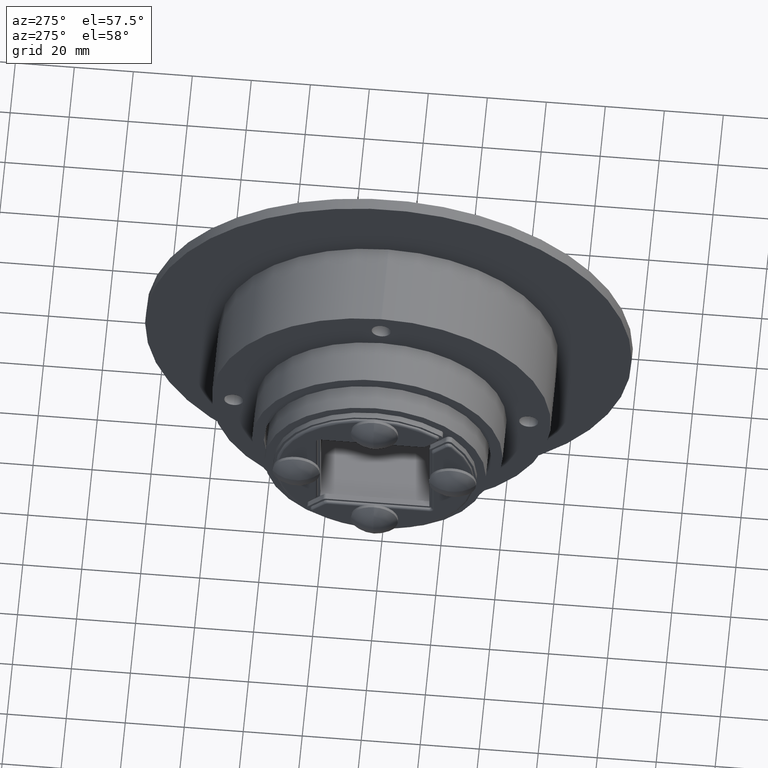
[diagram: clean part render]
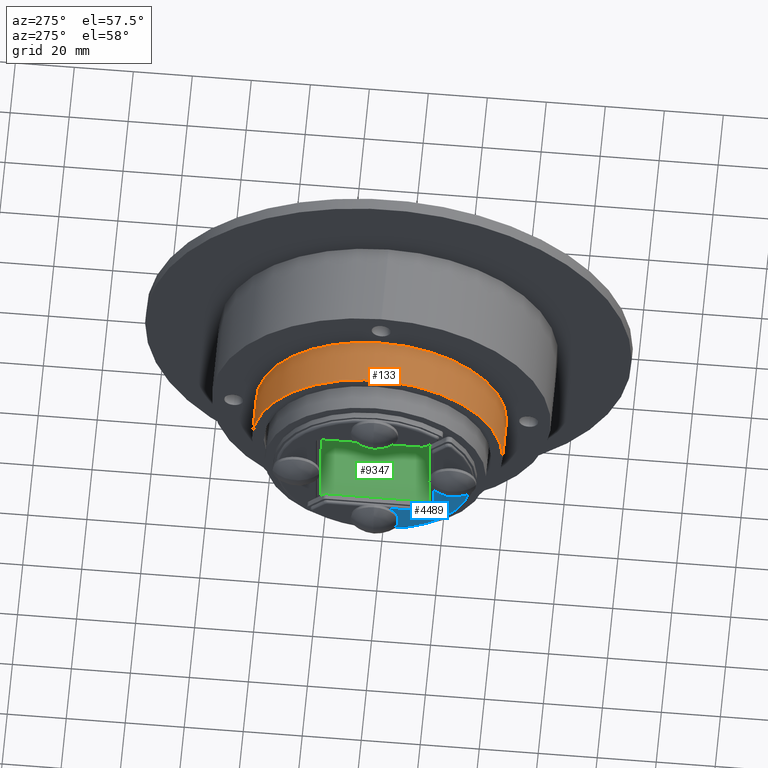
[diagram: same view with three faces highlighted in distinct colors, each labeled with its STEP entity id]
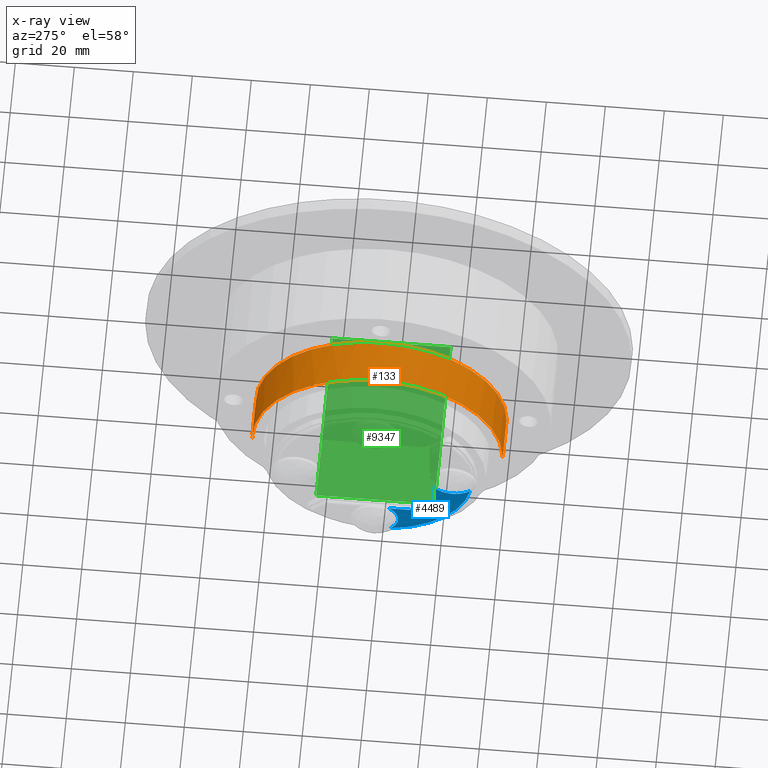
[diagram: x-ray of the same camera — body ghosted, the three highlighted faces saturated]
A machine part, auxiliary view with three faces highlighted in distinct colors.
The next image is the same camera in x-ray (body ghosted, the three faces saturated) — at least one of them is partly hidden behind the body in this view.
Their STEP definitions:

[orange] entity #133 — the highlighted cylindrical surface (partial cylindrical patch) has radius 42.5 mm, axis along (-1, 0, 0).
#83=CARTESIAN_POINT('',(0.0,0.0,0.0));
#84=DIRECTION('',(1.0,0.0,0.0));
#85=DIRECTION('',(0.0,-1.0,0.0));
#86=AXIS2_PLACEMENT_3D('',#83,#84,#85);
#87=CYLINDRICAL_SURFACE('',#86,42.500000000000000);
#88=CARTESIAN_POINT('',(32.0,-42.500000000000000,5.204577E-015));
#89=VERTEX_POINT('',#88);
#90=CARTESIAN_POINT('',(47.0,-42.500000000000000,5.204577E-015));
#91=VERTEX_POINT('',#90);
#92=CARTESIAN_POINT('',(32.0,-42.500000000000000,5.204577E-015));
#93=DIRECTION('',(1.0,0.0,0.0));
#94=VECTOR('',#93,15.0);
#95=LINE('',#92,#94);
#96=EDGE_CURVE('',#89,#91,#95,.T.);
#97=ORIENTED_EDGE('',*,*,#96,.F.);
#98=CARTESIAN_POINT('',(32.0,5.204577E-015,-42.500000000000000));
#99=VERTEX_POINT('',#98);
#100=CARTESIAN_POINT('',(32.0,0.0,0.0));
#101=DIRECTION('',(1.0,0.0,0.0));
#102=DIRECTION('',(0.0,-1.0,0.0));
#103=AXIS2_PLACEMENT_3D('',#100,#101,#102);
#104=CIRCLE('',#103,42.500000000000000);
#105=EDGE_CURVE('',#89,#99,#104,.T.);
#106=ORIENTED_EDGE('',*,*,#105,.T.);
#107=CARTESIAN_POINT('',(32.0,42.500000000000000,-5.204577E-015));
#108=VERTEX_POINT('',#107);
#109=CARTESIAN_POINT('',(32.0,0.0,0.0));
#110=DIRECTION('',(1.0,0.0,0.0));
#111=DIRECTION('',(0.0,-1.0,0.0));
#112=AXIS2_PLACEMENT_3D('',#109,#110,#111);
#113=CIRCLE('',#112,42.500000000000000);
#114=EDGE_CURVE('',#99,#108,#113,.T.);
#115=ORIENTED_EDGE('',*,*,#114,.T.);
#116=CARTESIAN_POINT('',(47.0,42.500000000000000,5.204577E-015));
#117=VERTEX_POINT('',#116);
#118=CARTESIAN_POINT('',(47.0,42.500000000000000,5.204577E-015));
#119=DIRECTION('',(-1.0,0.0,0.0));
#120=VECTOR('',#119,15.0);
#121=LINE('',#118,#120);
#122=EDGE_CURVE('',#117,#108,#121,.T.);
#123=ORIENTED_EDGE('',*,*,#122,.F.);
#124=CARTESIAN_POINT('',(47.0,0.0,0.0));
#125=DIRECTION('',(-1.0,0.0,0.0));
#126=DIRECTION('',(0.0,-1.0,0.0));
#127=AXIS2_PLACEMENT_3D('',#124,#125,#126);
#128=CIRCLE('',#127,42.500000000000000);
#129=EDGE_CURVE('',#117,#91,#128,.T.);
#130=ORIENTED_EDGE('',*,*,#129,.T.);
#131=EDGE_LOOP('',(#97,#106,#115,#123,#130));
#132=FACE_OUTER_BOUND('',#131,.T.);
#133=ADVANCED_FACE('',(#132),#87,.T.);

[blue] entity #4489 — the highlighted planar face has unit normal (1, 0, -0).
#3088=CARTESIAN_POINT('',(-66.0,-20.099999999999998,-18.499999999999982));
#3089=VERTEX_POINT('',#3088);
#3097=CARTESIAN_POINT('',(-66.0,-20.100000000000001,-4.799999999999988));
#3098=VERTEX_POINT('',#3097);
#3099=CARTESIAN_POINT('',(-66.0,-20.099999999999998,-18.499999999999982));
#3100=DIRECTION('',(0.0,0.0,1.0));
#3101=VECTOR('',#3100,13.699999999999994);
#3102=LINE('',#3099,#3101);
#3103=EDGE_CURVE('',#3089,#3098,#3102,.T.);
#3245=CARTESIAN_POINT('',(-66.0,-4.800000000000118,-20.100000000000090));
#3246=VERTEX_POINT('',#3245);
#3253=CARTESIAN_POINT('',(-66.0,-18.500000000000011,-20.099999999999984));
#3254=VERTEX_POINT('',#3253);
#3255=CARTESIAN_POINT('',(-66.0,-4.800000000000118,-20.100000000000090));
#3256=DIRECTION('',(0.0,-1.0,0.0));
#3257=VECTOR('',#3256,13.699999999999893);
#3258=LINE('',#3255,#3257);
#3259=EDGE_CURVE('',#3246,#3254,#3258,.T.);
#4043=CARTESIAN_POINT('',(-66.0,-5.330609580977187,-32.465283018867936));
#4044=VERTEX_POINT('',#4043);
#4052=CARTESIAN_POINT('',(-66.0,-3.245207E-015,-26.500000000000000));
#4053=DIRECTION('',(1.0,0.0,0.0));
#4054=DIRECTION('',(0.0,0.0,1.0));
#4055=AXIS2_PLACEMENT_3D('',#4052,#4053,#4054);
#4056=CIRCLE('',#4055,7.999999999999996);
#4057=EDGE_CURVE('',#3246,#4044,#4056,.T.);
#4326=CARTESIAN_POINT('',(-66.0,-32.465283018867936,-5.330609580977176));
#4327=VERTEX_POINT('',#4326);
#4369=CARTESIAN_POINT('',(-66.0,-26.500000000000000,5.884182E-015));
#4370=DIRECTION('',(1.0,0.0,0.0));
#4371=DIRECTION('',(0.0,1.0,0.0));
#4372=AXIS2_PLACEMENT_3D('',#4369,#4370,#4371);
#4373=CIRCLE('',#4372,7.999999999999996);
#4374=EDGE_CURVE('',#4327,#3098,#4373,.T.);
#4464=CARTESIAN_POINT('',(-66.0,-11.647704132465789,-11.647704132465734));
#4465=DIRECTION('',(1.0,0.0,0.0));
#4466=DIRECTION('',(0.0,0.0,1.0));
#4467=AXIS2_PLACEMENT_3D('',#4464,#4465,#4466);
#4468=PLANE('',#4467);
#4469=ORIENTED_EDGE('',*,*,#4057,.T.);
#4470=CARTESIAN_POINT('',(-66.0,-1.094764E-046,1.340655E-062));
#4471=DIRECTION('',(1.000000000000000,0.0,0.0));
#4472=DIRECTION('',(0.0,-0.707106781186549,-0.707106781186546));
#4473=AXIS2_PLACEMENT_3D('',#4470,#4471,#4472);
#4474=CIRCLE('',#4473,32.900000000000006);
#4475=EDGE_CURVE('',#4327,#4044,#4474,.T.);
#4476=ORIENTED_EDGE('',*,*,#4475,.F.);
#4477=ORIENTED_EDGE('',*,*,#4374,.T.);
#4478=ORIENTED_EDGE('',*,*,#3103,.F.);
#4479=CARTESIAN_POINT('',(-66.0,-18.499999999999996,-18.499999999999982));
#4480=DIRECTION('',(-1.0,0.0,0.0));
#4481=DIRECTION('',(0.0,-0.707106781186550,-0.707106781186545));
#4482=AXIS2_PLACEMENT_3D('',#4479,#4480,#4481);
#4483=CIRCLE('',#4482,1.600000000000001);
#4484=EDGE_CURVE('',#3254,#3089,#4483,.T.);
#4485=ORIENTED_EDGE('',*,*,#4484,.F.);
#4486=ORIENTED_EDGE('',*,*,#3259,.F.);
#4487=EDGE_LOOP('',(#4469,#4476,#4477,#4478,#4485,#4486));
#4488=FACE_OUTER_BOUND('',#4487,.T.);
#4489=ADVANCED_FACE('',(#4488),#4468,.F.);

[green] entity #9347 — the highlighted planar face has unit normal (0, -0, -1).
#6401=CARTESIAN_POINT('',(-63.000000000000007,18.585786437626531,-20.0));
#6402=VERTEX_POINT('',#6401);
#6921=CARTESIAN_POINT('',(-63.000000000000007,-20.0,-20.0));
#6922=VERTEX_POINT('',#6921);
#6929=CARTESIAN_POINT('',(-63.000000000000007,-20.0,-20.0));
#6930=DIRECTION('',(0.0,1.0,0.0));
#6931=VECTOR('',#6930,38.585786437626531);
#6932=LINE('',#6929,#6931);
#6933=EDGE_CURVE('',#6922,#6402,#6932,.T.);
#7076=CARTESIAN_POINT('',(0.0,18.585786437626922,-20.0));
#7077=VERTEX_POINT('',#7076);
#7179=CARTESIAN_POINT('',(0.0,-20.0,-20.0));
#7180=VERTEX_POINT('',#7179);
#7181=CARTESIAN_POINT('',(0.0,18.585786437626922,-20.0));
#7182=DIRECTION('',(0.0,-1.0,0.0));
#7183=VECTOR('',#7182,38.585786437626922);
#7184=LINE('',#7181,#7183);
#7185=EDGE_CURVE('',#7077,#7180,#7184,.T.);
#7392=CARTESIAN_POINT('',(0.0,20.0,-20.0));
#7393=VERTEX_POINT('',#7392);
#7400=CARTESIAN_POINT('',(0.0,20.0,-20.0));
#7401=DIRECTION('',(0.0,-1.0,0.0));
#7402=VECTOR('',#7401,1.414213562373078);
#7403=LINE('',#7400,#7402);
#7404=EDGE_CURVE('',#7393,#7077,#7403,.T.);
#9312=CARTESIAN_POINT('',(0.0,-20.0,-20.0));
#9313=DIRECTION('',(-1.0,0.0,0.0));
#9314=VECTOR('',#9313,63.000000000000007);
#9315=LINE('',#9312,#9314);
#9316=EDGE_CURVE('',#7180,#6922,#9315,.T.);
#9322=CARTESIAN_POINT('',(0.0,-20.0,-20.0));
#9323=DIRECTION('',(0.0,0.0,-1.0));
#9324=DIRECTION('',(-1.0,0.0,0.0));
#9325=AXIS2_PLACEMENT_3D('',#9322,#9323,#9324);
#9326=PLANE('',#9325);
#9327=ORIENTED_EDGE('',*,*,#6933,.F.);
#9328=ORIENTED_EDGE('',*,*,#9316,.F.);
#9329=ORIENTED_EDGE('',*,*,#7185,.F.);
#9330=ORIENTED_EDGE('',*,*,#7404,.F.);
#9331=CARTESIAN_POINT('',(-63.000000000000007,20.0,-20.0));
#9332=VERTEX_POINT('',#9331);
#9333=CARTESIAN_POINT('',(0.0,20.0,-20.0));
#9334=DIRECTION('',(-1.0,0.0,0.0));
#9335=VECTOR('',#9334,63.000000000000007);
#9336=LINE('',#9333,#9335);
#9337=EDGE_CURVE('',#7393,#9332,#9336,.T.);
#9338=ORIENTED_EDGE('',*,*,#9337,.T.);
#9339=CARTESIAN_POINT('',(-63.000000000000007,18.585786437626531,-20.0));
#9340=DIRECTION('',(0.0,1.0,0.0));
#9341=VECTOR('',#9340,1.414213562373469);
#9342=LINE('',#9339,#9341);
#9343=EDGE_CURVE('',#6402,#9332,#9342,.T.);
#9344=ORIENTED_EDGE('',*,*,#9343,.F.);
#9345=EDGE_LOOP('',(#9327,#9328,#9329,#9330,#9338,#9344));
#9346=FACE_OUTER_BOUND('',#9345,.T.);
#9347=ADVANCED_FACE('',(#9346),#9326,.F.);